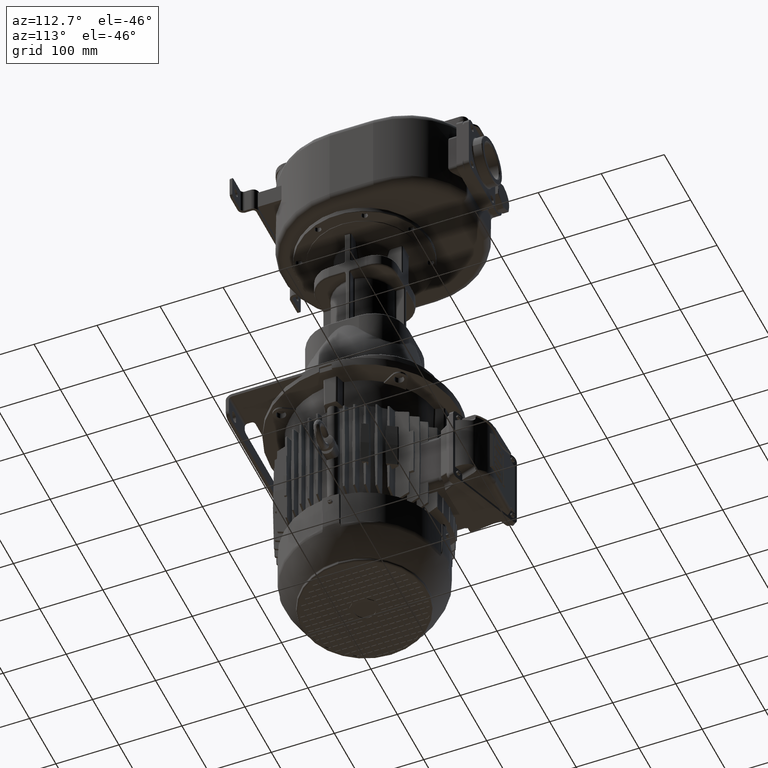
[diagram: clean part render]
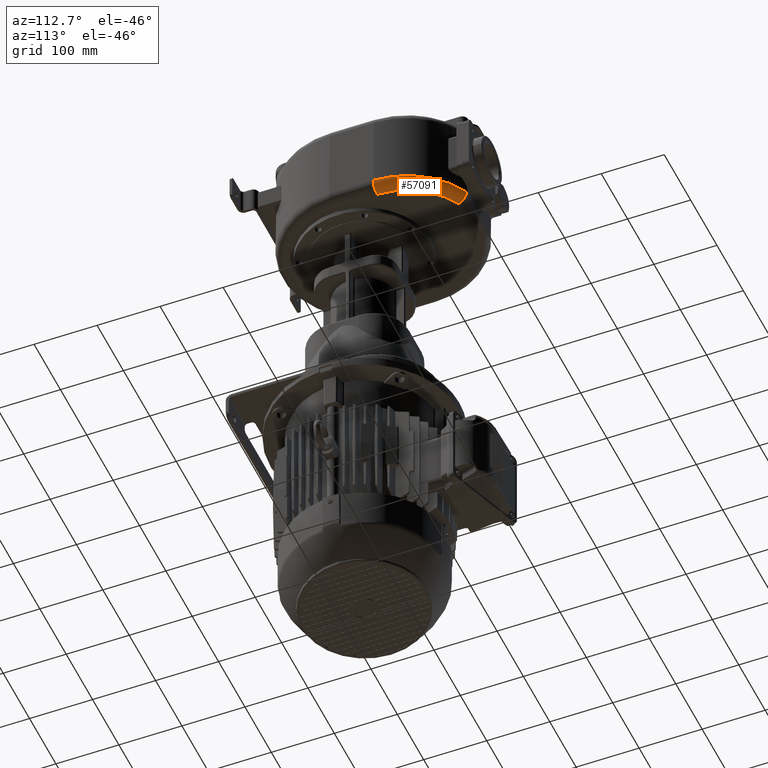
[diagram: same view with one face highlighted and labeled with its STEP entity id]
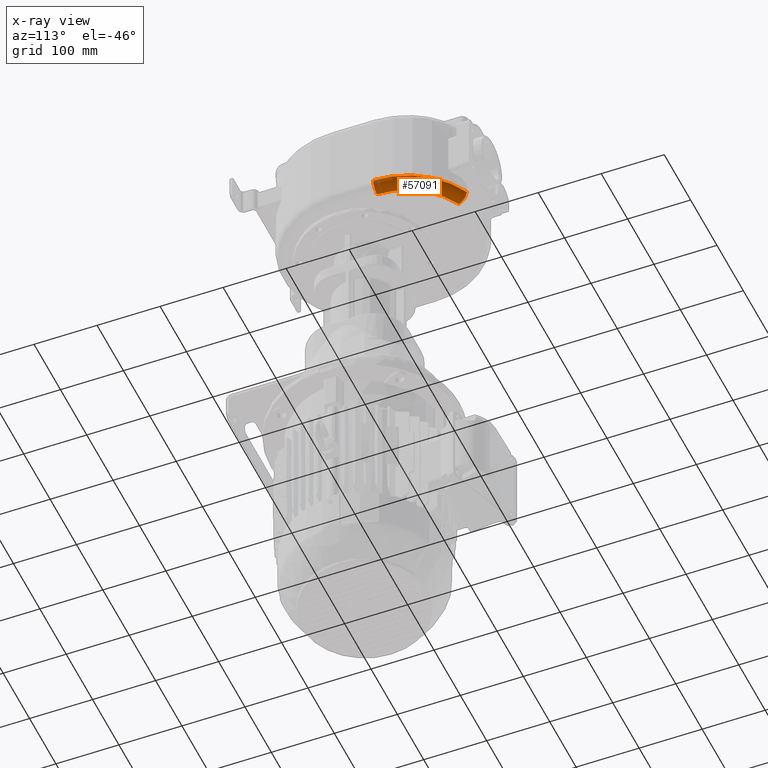
[diagram: x-ray of the same camera — body ghosted, the highlighted face saturated]
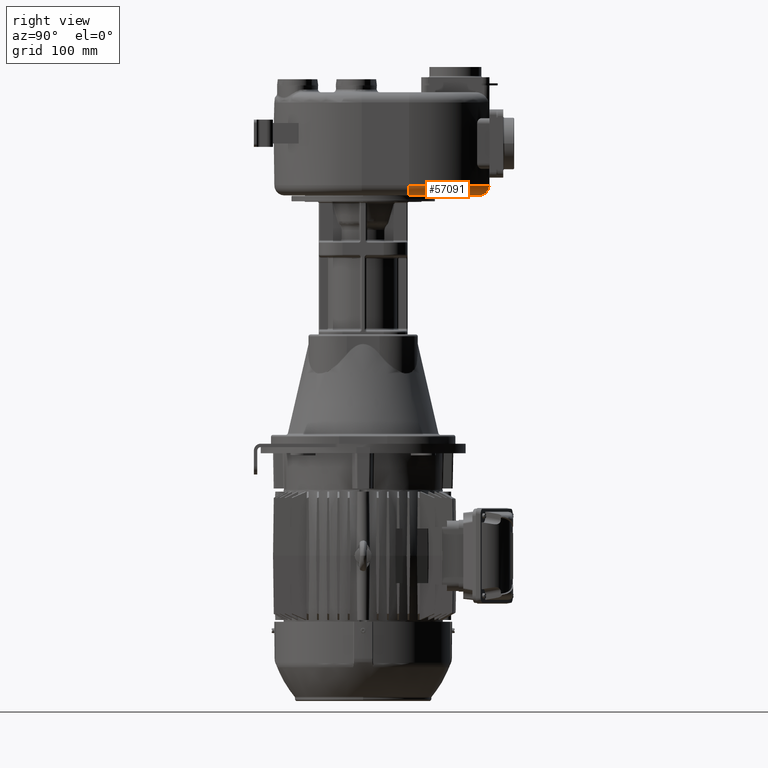
[diagram: same view with one face highlighted and labeled with its STEP entity id]
A machine part, auxiliary view. The second image highlights one B-rep face of the part: STEP entity #57091.
The next image is the same camera in x-ray: the body ghosted, the highlighted face saturated — about 0% of this face is hidden behind the body in this view.
A second angle (right view) of the same face is appended — the face is thin or edge-on in the first view.
In plain terms, the highlighted toroidal blend (fillet) surface has major radius 114 mm and minor (blend) radius 15 mm.
Its self-contained STEP definition (entity closure, byte-faithful):
#859=CARTESIAN_POINT('',(0.E0,1.992730662052E2,-7.6E1));
#860=DIRECTION('',(0.E0,0.E0,-1.E0));
#861=DIRECTION('',(4.214873013107E-1,9.068343039574E-1,0.E0));
#862=AXIS2_PLACEMENT_3D('',#859,#860,#861);
#2780=CARTESIAN_POINT('',(1.14E2,1.992730662052E2,-7.6E1));
#2781=DIRECTION('',(0.E0,-1.E0,0.E0));
#2782=DIRECTION('',(0.E0,0.E0,-1.E0));
#2783=AXIS2_PLACEMENT_3D('',#2780,#2781,#2782);
#2807=CARTESIAN_POINT('',(0.E0,1.992730662052E2,-9.1E1));
#2808=DIRECTION('',(0.E0,0.E0,-1.E0));
#2809=DIRECTION('',(4.335816491492E-1,9.011142843841E-1,0.E0));
#2810=AXIS2_PLACEMENT_3D('',#2807,#2808,#2809);
#3588=CARTESIAN_POINT('',(4.942850466453E1,3.020000000069E2,-9.1E1));
#3589=CARTESIAN_POINT('',(4.949033036946E1,3.021742356139E2,-9.099990290466E1));
#3590=CARTESIAN_POINT('',(4.961525509830E1,3.025220057698E2,-9.099328195343E1));
#3591=CARTESIAN_POINT('',(4.979941141913E1,3.030432290774E2,-9.096290158695E1));
#3592=CARTESIAN_POINT('',(4.998345880838E1,3.035623001008E2,-9.091251357710E1));
#3593=CARTESIAN_POINT('',(5.016626253116E1,3.040789694688E2,-9.084213864504E1));
#3594=CARTESIAN_POINT('',(5.034782009245E1,3.045926127620E2,-9.075191923747E1));
#3595=CARTESIAN_POINT('',(5.052783586434E1,3.051027090094E2,-9.064197425193E1));
#3596=CARTESIAN_POINT('',(5.070604998443E1,3.056087519078E2,-9.051243318142E1));
#3597=CARTESIAN_POINT('',(5.088206866787E1,3.061102255755E2,-9.036344704900E1));
#3598=CARTESIAN_POINT('',(5.105581093520E1,3.066064393536E2,-9.019519271260E1));
#3599=CARTESIAN_POINT('',(5.122712874386E1,3.070967604581E2,-9.000785671074E1));
#3600=CARTESIAN_POINT('',(5.139584284882E1,3.075804015704E2,-8.980170796380E1));
#3601=CARTESIAN_POINT('',(5.156174255562E1,3.080565810231E2,-8.957706631806E1));
#3602=CARTESIAN_POINT('',(5.172467767706E1,3.085245018882E2,-8.933429677730E1));
#3603=CARTESIAN_POINT('',(5.188415293133E1,3.089836713270E2,-8.907374678630E1));
#3604=CARTESIAN_POINT('',(5.204005143235E1,3.094335341064E2,-8.879573100520E1));
#3605=CARTESIAN_POINT('',(5.219224389621E1,3.098735451142E2,-8.850057444199E1));
#3606=CARTESIAN_POINT('',(5.234057271322E1,3.103030702901E2,-8.818868386031E1));
#3607=CARTESIAN_POINT('',(5.248485193583E1,3.107214594142E2,-8.786052673799E1));
#3608=CARTESIAN_POINT('',(5.262494689299E1,3.111280694238E2,-8.751659828489E1));
#3609=CARTESIAN_POINT('',(5.276055054186E1,3.115224078446E2,-8.715738844948E1));
#3610=CARTESIAN_POINT('',(5.289147735281E1,3.119039771263E2,-8.678338292121E1));
#3611=CARTESIAN_POINT('',(5.301764653331E1,3.122722469142E2,-8.639508724279E1));
#3612=CARTESIAN_POINT('',(5.313894281539E1,3.126267152131E2,-8.599303277299E1));
#3613=CARTESIAN_POINT('',(5.325524824279E1,3.129668994508E2,-8.557777312674E1));
#3614=CARTESIAN_POINT('',(5.336645010844E1,3.132923348850E2,-8.514988412447E1));
#3615=CARTESIAN_POINT('',(5.347238422536E1,3.136026327396E2,-8.470992549417E1));
#3616=CARTESIAN_POINT('',(5.357279893323E1,3.138974889557E2,-8.425843710624E1));
#3617=CARTESIAN_POINT('',(5.366769248390E1,3.141765046507E2,-8.379595712103E1));
#3618=CARTESIAN_POINT('',(5.375698420955E1,3.144393003583E2,-8.332308077603E1));
#3619=CARTESIAN_POINT('',(5.384058759520E1,3.146854770912E2,-8.284049498663E1));
#3620=CARTESIAN_POINT('',(5.391840406142E1,3.149146841350E2,-8.234889081434E1));
#3621=CARTESIAN_POINT('',(5.399034068516E1,3.151266018891E2,-8.184897353840E1));
#3622=CARTESIAN_POINT('',(5.405619684268E1,3.153210017542E2,-8.134144666035E1));
#3623=CARTESIAN_POINT('',(5.411596203743E1,3.154976006678E2,-8.082701956367E1));
#3624=CARTESIAN_POINT('',(5.416959993047E1,3.156561657361E2,-8.030639589171E1));
#3625=CARTESIAN_POINT('',(5.421707797685E1,3.157965143107E2,-7.978020990113E1));
#3626=CARTESIAN_POINT('',(5.425834406890E1,3.159184878181E2,-7.924910688964E1));
#3627=CARTESIAN_POINT('',(5.429334889628E1,3.160219464923E2,-7.871373900612E1));
#3628=CARTESIAN_POINT('',(5.432196947595E1,3.161067969608E2,-7.817477570760E1));
#3629=CARTESIAN_POINT('',(5.434422715049E1,3.161728990413E2,-7.763302291696E1));
#3630=CARTESIAN_POINT('',(5.436014168300E1,3.162201391399E2,-7.708900848861E1));
#3631=CARTESIAN_POINT('',(5.436973337105E1,3.162484668310E2,-7.654433886930E1));
#3632=CARTESIAN_POINT('',(5.437184854621E1,3.162546971328E2,-7.617919695448E1));
#3633=CARTESIAN_POINT('',(5.437186071829E1,3.162546914774E2,-7.599641206110E1));
#44455=CARTESIAN_POINT('',(4.942844411542E1,3.020000000017E2,-9.1E1));
#44457=VERTEX_POINT('',#44455);
#44458=CARTESIAN_POINT('',(1.14E2,1.992730662052E2,-9.1E1));
#44459=VERTEX_POINT('',#44458);
#44460=CARTESIAN_POINT('',(5.437186186908E1,3.162546914157E2,-7.6E1));
#44461=CARTESIAN_POINT('',(1.29E2,1.992730662052E2,-7.6E1));
#44462=VERTEX_POINT('',#44460);
#44463=VERTEX_POINT('',#44461);
#57080=CARTESIAN_POINT('',(0.E0,1.992730662052E2,-7.6E1));
#57081=DIRECTION('',(0.E0,0.E0,-1.E0));
#57082=DIRECTION('',(-8.438544829877E-1,-5.365720935174E-1,0.E0));
#57083=AXIS2_PLACEMENT_3D('',#57080,#57081,#57082);
#57084=TOROIDAL_SURFACE('',#57083,1.14E2,1.5E1);
#57085=ORIENTED_EDGE('',*,*,#55903,.T.);
#57086=ORIENTED_EDGE('',*,*,#55884,.T.);
#57087=ORIENTED_EDGE('',*,*,#54140,.F.);
#57088=ORIENTED_EDGE('',*,*,#57073,.F.);
#57089=EDGE_LOOP('',(#57085,#57086,#57087,#57088));
#57090=FACE_OUTER_BOUND('',#57089,.F.);
#57091=ADVANCED_FACE('',(#57090),#57084,.T.);
#863=CIRCLE('',#862,1.29E2);
#2784=CIRCLE('',#2783,1.5E1);
#2811=CIRCLE('',#2810,1.14E2);
#3634=B_SPLINE_CURVE_WITH_KNOTS('',3,(#3588,#3589,#3590,#3591,#3592,#3593,#3594,
#3595,#3596,#3597,#3598,#3599,#3600,#3601,#3602,#3603,#3604,#3605,#3606,#3607,
#3608,#3609,#3610,#3611,#3612,#3613,#3614,#3615,#3616,#3617,#3618,#3619,#3620,
#3621,#3622,#3623,#3624,#3625,#3626,#3627,#3628,#3629,#3630,#3631,#3632,#3633),
.UNSPECIFIED.,.F.,.F.,(4,1,1,1,1,1,1,1,1,1,1,1,1,1,1,1,1,1,1,1,1,1,1,1,1,1,1,1,
1,1,1,1,1,1,1,1,1,1,1,1,1,1,1,4),(0.E0,2.325581395349E-2,4.651162790698E-2,
6.976744186047E-2,9.302325581395E-2,1.162790697674E-1,1.395348837209E-1,
1.627906976744E-1,1.860465116279E-1,2.093023255814E-1,2.325581395349E-1,
2.558139534884E-1,2.790697674419E-1,3.023255813953E-1,3.255813953488E-1,
3.488372093023E-1,3.720930232558E-1,3.953488372093E-1,4.186046511628E-1,
4.418604651163E-1,4.651162790698E-1,4.883720930233E-1,5.116279069767E-1,
5.348837209302E-1,5.581395348837E-1,5.813953488372E-1,6.046511627907E-1,
6.279069767442E-1,6.511627906977E-1,6.744186046512E-1,6.976744186047E-1,
7.209302325581E-1,7.441860465116E-1,7.674418604651E-1,7.906976744186E-1,
8.139534883721E-1,8.372093023256E-1,8.604651162791E-1,8.837209302326E-1,
9.069767441860E-1,9.302325581395E-1,9.534883720930E-1,9.767441860465E-1,1.E0),
.UNSPECIFIED.);
#54140=EDGE_CURVE('',#44462,#44463,#863,.T.);
#55884=EDGE_CURVE('',#44459,#44463,#2784,.T.);
#55903=EDGE_CURVE('',#44457,#44459,#2811,.T.);
#57073=EDGE_CURVE('',#44457,#44462,#3634,.T.);